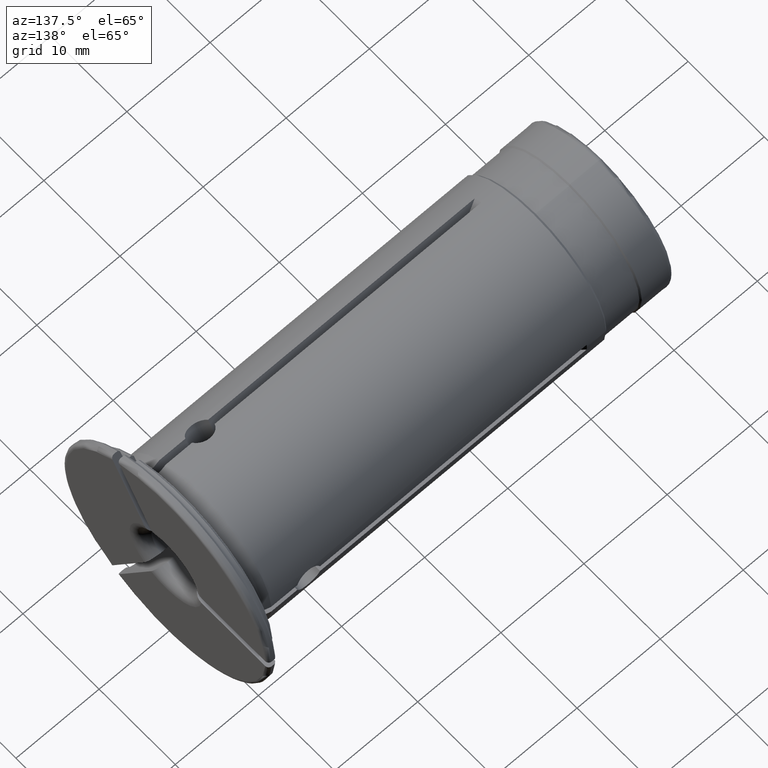
[diagram: clean part render]
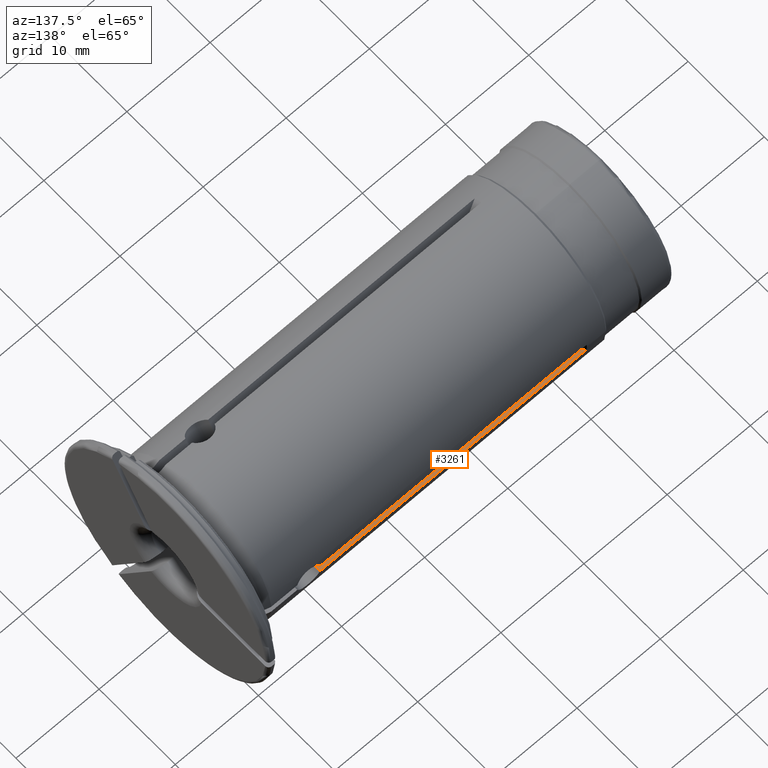
[diagram: same view with one face highlighted and labeled with its STEP entity id]
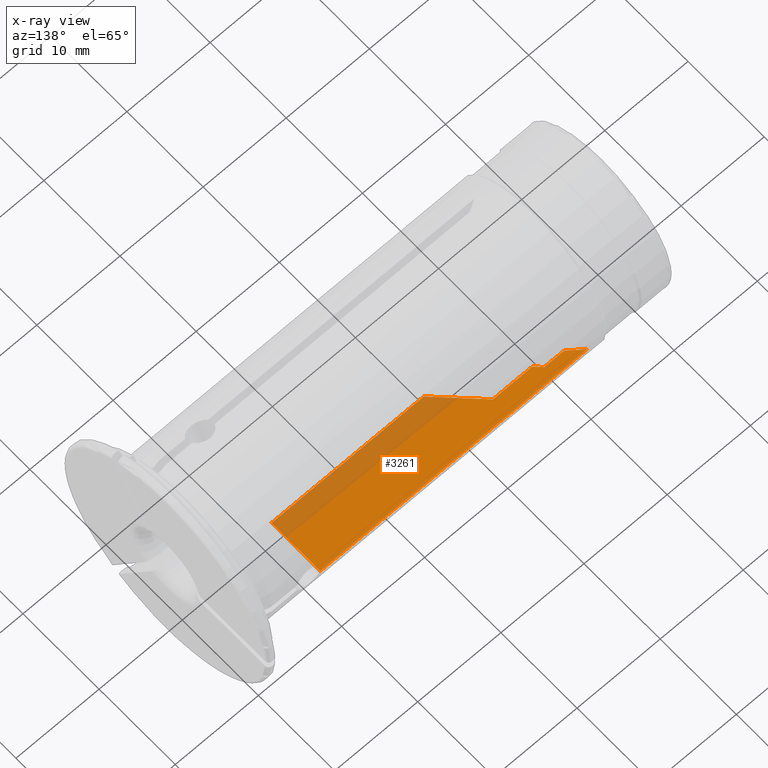
[diagram: x-ray of the same camera — body ghosted, the highlighted face saturated]
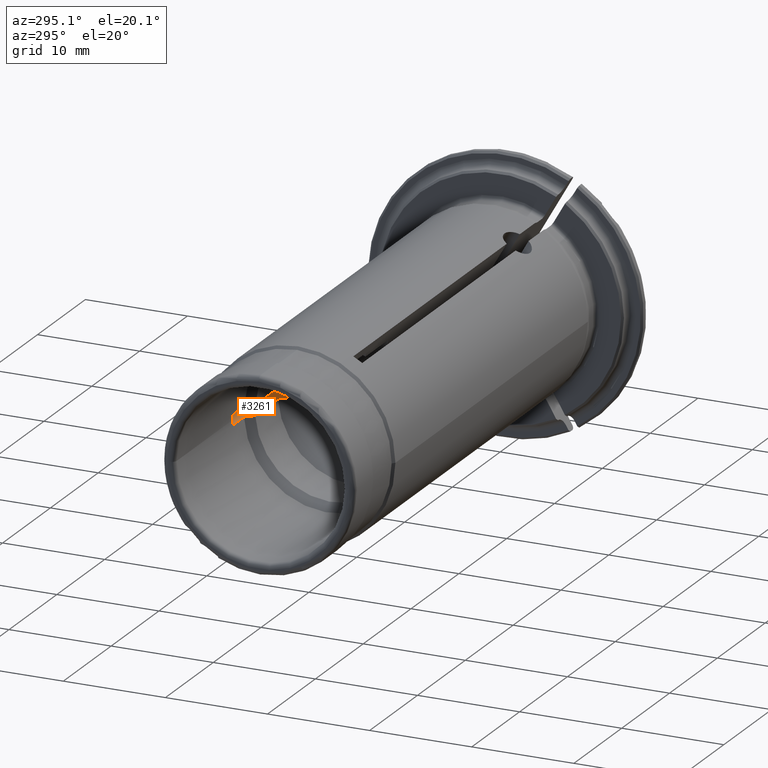
[diagram: same view with one face highlighted and labeled with its STEP entity id]
A machine part, auxiliary view. The second image highlights one B-rep face of the part: STEP entity #3261.
The next image is the same camera in x-ray: the body ghosted, the highlighted face saturated — about 27% of this face is hidden behind the body in this view.
A second angle (auxiliary view) of the same face is appended — the face is thin or edge-on in the first view.
In plain terms, the highlighted planar face has unit normal (0, 0, 1).
Its self-contained STEP definition (entity closure, byte-faithful):
#244=DIRECTION('',(-1.E0,0.E0,0.E0));
#245=VECTOR('',#244,1.831393424112E1);
#246=CARTESIAN_POINT('',(-7.861065758882E0,3.135382751755E0,-5.E-1));
#247=LINE('',#246,#245);
#1120=DIRECTION('',(1.E0,0.E0,0.E0));
#1121=VECTOR('',#1120,3.207108317907E1);
#1122=CARTESIAN_POINT('',(-3.993214893795E1,9.511867587388E0,-5.E-1));
#1123=LINE('',#1122,#1121);
#1215=CARTESIAN_POINT('',(-3.05E1,7.483314773548E0,-5.E-1));
#1216=CARTESIAN_POINT('',(-2.995253024984E1,6.934624353531E0,-5.E-1));
#1217=CARTESIAN_POINT('',(-2.890196474938E1,5.881198067245E0,-5.E-1));
#1218=CARTESIAN_POINT('',(-2.745953610087E1,4.432252732175E0,-5.E-1));
#1219=CARTESIAN_POINT('',(-2.658788144886E1,3.553481179898E0,-5.E-1));
#1220=CARTESIAN_POINT('',(-2.6175E1,3.135382751755E0,-5.E-1));
#1252=DIRECTION('',(-1.E0,0.E0,0.E0));
#1253=VECTOR('',#1252,4.75E0);
#1254=CARTESIAN_POINT('',(-3.05E1,7.483314773548E0,-5.E-1));
#1255=LINE('',#1254,#1253);
#1306=CARTESIAN_POINT('',(-3.6E1,8.234834546E0,-5.E-1));
#1307=CARTESIAN_POINT('',(-3.591582522169E1,8.150504749554E0,-5.E-1));
#1308=CARTESIAN_POINT('',(-3.574803609465E1,7.982397108973E0,-5.E-1));
#1309=CARTESIAN_POINT('',(-3.549802208832E1,7.731877698749E0,-5.E-1));
#1310=CARTESIAN_POINT('',(-3.533248540262E1,7.565984090342E0,-5.E-1));
#1311=CARTESIAN_POINT('',(-3.525E1,7.483314773548E0,-5.E-1));
#1388=DIRECTION('',(-1.E0,0.E0,0.E0));
#1389=VECTOR('',#1388,2.395991566829E0);
#1390=CARTESIAN_POINT('',(-3.6E1,8.234834546E0,-5.E-1));
#1391=LINE('',#1390,#1389);
#1530=CARTESIAN_POINT('',(-1.52E1,3.77E1,-5.E-1));
#1531=DIRECTION('',(0.E0,0.E0,1.E0));
#1532=DIRECTION('',(-6.595239716787E-1,-7.516835310030E-1,0.E0));
#1533=AXIS2_PLACEMENT_3D('',#1530,#1531,#1532);
#1535=DIRECTION('',(0.E0,-1.E0,0.E0));
#1536=VECTOR('',#1535,6.376484835633E0);
#1537=CARTESIAN_POINT('',(-7.861065758882E0,9.511867587388E0,-5.E-1));
#1538=LINE('',#1537,#1536);
#1624=CARTESIAN_POINT('',(-3.993214893795E1,9.511867587388E0,-5.E-1));
#1625=CARTESIAN_POINT('',(-7.861065758882E0,9.511867587388E0,-5.E-1));
#1626=VERTEX_POINT('',#1624);
#1627=VERTEX_POINT('',#1625);
#1652=VERTEX_POINT('',#1215);
#1653=VERTEX_POINT('',#1220);
#1654=CARTESIAN_POINT('',(-3.525E1,7.483314773548E0,-5.E-1));
#1655=VERTEX_POINT('',#1654);
#1656=CARTESIAN_POINT('',(-3.6E1,8.234834546E0,-5.E-1));
#1657=CARTESIAN_POINT('',(-3.839599156683E1,8.234834546E0,-5.E-1));
#1658=VERTEX_POINT('',#1656);
#1659=VERTEX_POINT('',#1657);
#1679=CARTESIAN_POINT('',(-7.861065758882E0,3.135382751755E0,-5.E-1));
#1680=VERTEX_POINT('',#1679);
#3245=CARTESIAN_POINT('',(0.E0,0.E0,-5.E-1));
#3246=DIRECTION('',(0.E0,0.E0,1.E0));
#3247=DIRECTION('',(1.E0,0.E0,0.E0));
#3248=AXIS2_PLACEMENT_3D('',#3245,#3246,#3247);
#3249=PLANE('',#3248);
#3250=ORIENTED_EDGE('',*,*,#2783,.T.);
#3252=ORIENTED_EDGE('',*,*,#3251,.T.);
#3253=ORIENTED_EDGE('',*,*,#2070,.T.);
#3254=ORIENTED_EDGE('',*,*,#2894,.F.);
#3255=ORIENTED_EDGE('',*,*,#2936,.T.);
#3256=ORIENTED_EDGE('',*,*,#2980,.F.);
#3257=ORIENTED_EDGE('',*,*,#3021,.T.);
#3258=ORIENTED_EDGE('',*,*,#2753,.F.);
#3259=EDGE_LOOP('',(#3250,#3252,#3253,#3254,#3255,#3256,#3257,#3258));
#3260=FACE_OUTER_BOUND('',#3259,.F.);
#3261=ADVANCED_FACE('',(#3260),#3249,.T.);
#1221=B_SPLINE_CURVE_WITH_KNOTS('',3,(#1215,#1216,#1217,#1218,#1219,#1220),
.UNSPECIFIED.,.F.,.F.,(4,1,1,4),(0.E0,3.333333333333E-1,6.666666666667E-1,1.E0),
.UNSPECIFIED.);
#1312=B_SPLINE_CURVE_WITH_KNOTS('',3,(#1306,#1307,#1308,#1309,#1310,#1311),
.UNSPECIFIED.,.F.,.F.,(4,1,1,4),(0.E0,3.333333333333E-1,6.666666666667E-1,1.E0),
.UNSPECIFIED.);
#1534=CIRCLE('',#1533,3.75E1);
#2070=EDGE_CURVE('',#1680,#1653,#247,.T.);
#2753=EDGE_CURVE('',#1626,#1659,#1534,.T.);
#2783=EDGE_CURVE('',#1626,#1627,#1123,.T.);
#2894=EDGE_CURVE('',#1652,#1653,#1221,.T.);
#2936=EDGE_CURVE('',#1652,#1655,#1255,.T.);
#2980=EDGE_CURVE('',#1658,#1655,#1312,.T.);
#3021=EDGE_CURVE('',#1658,#1659,#1391,.T.);
#3251=EDGE_CURVE('',#1627,#1680,#1538,.T.);